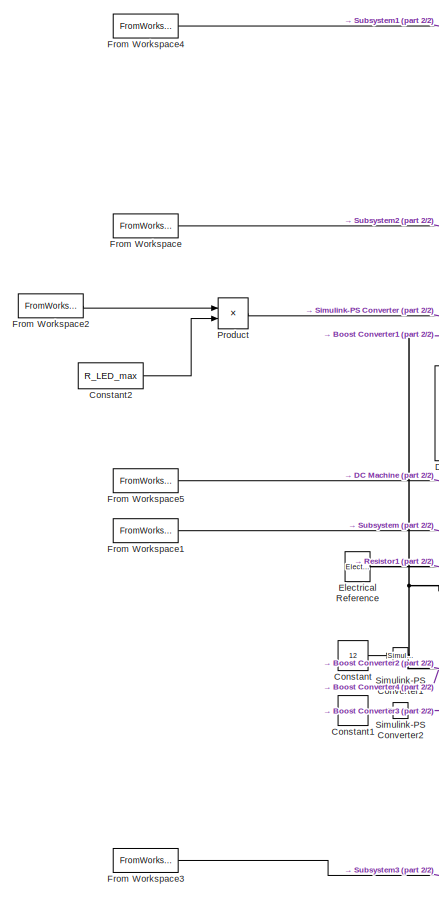
[diagram: root canvas - part 1/2, left side, full height]
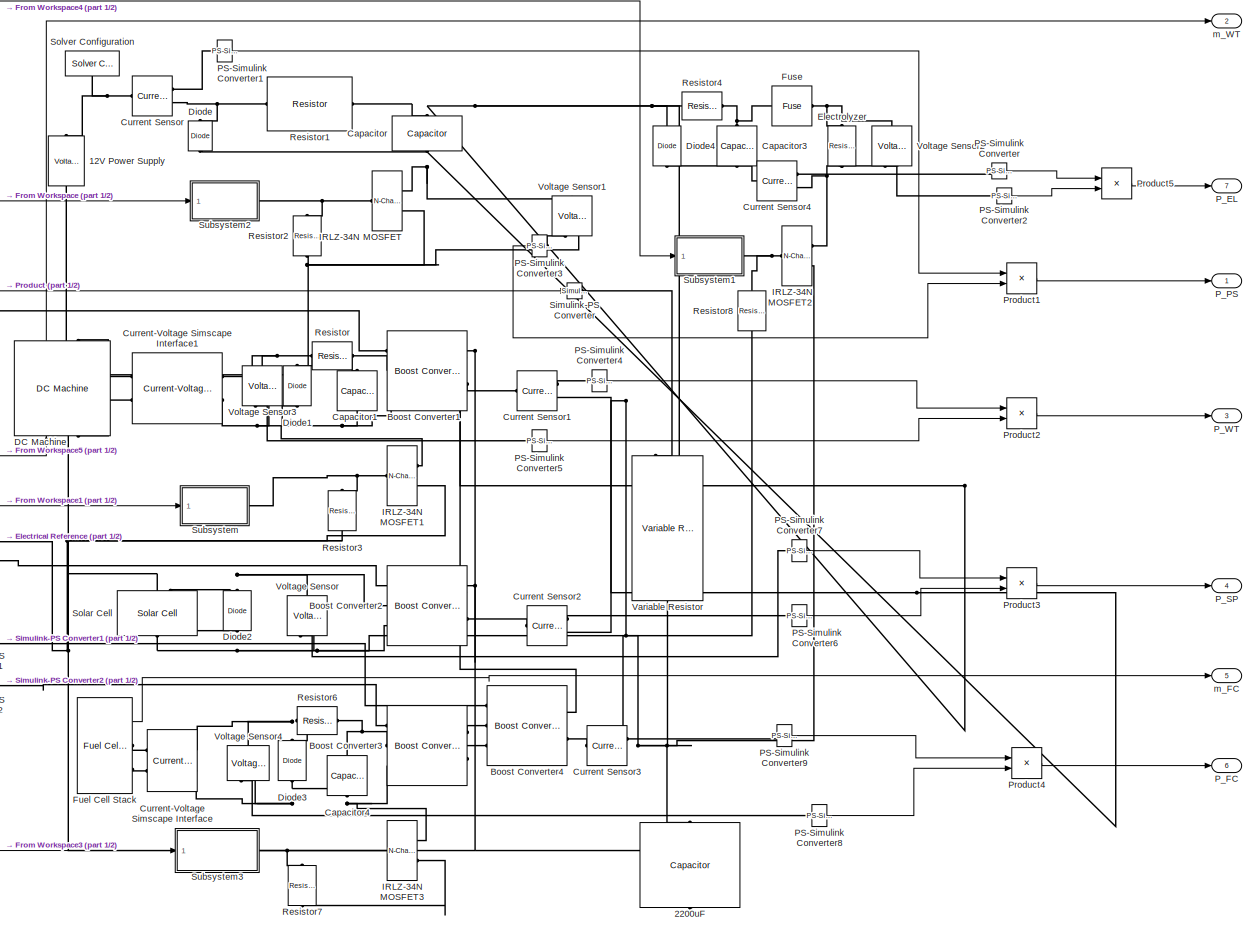
[diagram: root canvas - part 2/2, most of the canvas]
MODEL slx_ab03ebcbf2f6
KIND model
CONFIG AbsTol = auto
CONFIG EnableMultiTasking = off
CONFIG FixedStep = auto
CONFIG MaxStep = auto
CONFIG MinStep = auto
CONFIG RelTol = 1e-3
CONFIG SampleTimeConstraint = Unconstrained
CONFIG Solver = VariableStepAuto
CONFIG SolverName = VariableStepAuto
CONFIG StartTime = 0.0
CONFIG StopTime = 10.0
BLOCK [Reference] 12V Power Supply  REF=ee_lib/Sources/Voltage Source
  Ports = [0, 0, 0, 0, 0, 1, 1]
  SourceBlock = ee_lib/Sources/Voltage Source
  SourceProductBaseCode = PS
  SourceProductName = Simscape Electrical
  SourceType = Voltage Source
BLOCK [Reference] 2200uF  REF=fl_lib/Electrical/Electrical Elements/Capacitor
  Ports = [0, 0, 0, 0, 0, 1, 1]
  SourceBlock = fl_lib/Electrical/Electrical Elements/Capacitor
  SourceProductBaseCode = SS
  SourceProductName = Simscape
  SourceType = Capacitor
BLOCK [Reference] Boost Converter1  REF=ee_lib/Semiconductors &
Converters/Converters/Boost Converter
  Ports = [0, 0, 0, 0, 0, 3, 2]
  SourceBlock = ee_lib/Semiconductors &\nConverters/Converters/Boost Converter
  SourceProductBaseCode = PS
  SourceProductName = Simscape Electrical
  SourceType = Boost Converter
BLOCK [Reference] Boost Converter2  REF=ee_lib/Semiconductors &
Converters/Converters/Boost Converter
  Ports = [0, 0, 0, 0, 0, 3, 2]
  SourceBlock = ee_lib/Semiconductors &\nConverters/Converters/Boost Converter
  SourceProductBaseCode = PS
  SourceProductName = Simscape Electrical
  SourceType = Boost Converter
BLOCK [Reference] Boost Converter3  REF=ee_lib/Semiconductors &
Converters/Converters/Boost Converter
  Ports = [0, 0, 0, 0, 0, 3, 2]
  SourceBlock = ee_lib/Semiconductors &\nConverters/Converters/Boost Converter
  SourceProductBaseCode = PS
  SourceProductName = Simscape Electrical
  SourceType = Boost Converter
BLOCK [Reference] Boost Converter4  REF=ee_lib/Semiconductors &
Converters/Converters/Boost Converter
  Ports = [0, 0, 0, 0, 0, 3, 2]
  SourceBlock = ee_lib/Semiconductors &\nConverters/Converters/Boost Converter
  SourceProductBaseCode = PS
  SourceProductName = Simscape Electrical
  SourceType = Boost Converter
BLOCK [Reference] Capacitor  REF=fl_lib/Electrical/Electrical Elements/Capacitor
  Ports = [0, 0, 0, 0, 0, 1, 1]
  SourceBlock = fl_lib/Electrical/Electrical Elements/Capacitor
  SourceProductBaseCode = SS
  SourceProductName = Simscape
  SourceType = Capacitor
BLOCK [Reference] Capacitor1  REF=fl_lib/Electrical/Electrical Elements/Capacitor
  Ports = [0, 0, 0, 0, 0, 1, 1]
  SourceBlock = fl_lib/Electrical/Electrical Elements/Capacitor
  SourceProductBaseCode = SS
  SourceProductName = Simscape
  SourceType = Capacitor
BLOCK [Reference] Capacitor3  REF=fl_lib/Electrical/Electrical Elements/Capacitor
  Ports = [0, 0, 0, 0, 0, 1, 1]
  SourceBlock = fl_lib/Electrical/Electrical Elements/Capacitor
  SourceProductBaseCode = SS
  SourceProductName = Simscape
  SourceType = Capacitor
BLOCK [Reference] Capacitor4  REF=fl_lib/Electrical/Electrical Elements/Capacitor
  Ports = [0, 0, 0, 0, 0, 1, 1]
  SourceBlock = fl_lib/Electrical/Electrical Elements/Capacitor
  SourceProductBaseCode = SS
  SourceProductName = Simscape
  SourceType = Capacitor
BLOCK [Constant] Constant
  Value = 12
BLOCK [Constant] Constant1
  Value = 5
BLOCK [Constant] Constant2
  Value = R_LED_max
BLOCK [Reference] Current Sensor  REF=fl_lib/Electrical/Electrical Sensors/Current Sensor
  Ports = [0, 0, 0, 0, 0, 1, 2]
  SourceBlock = fl_lib/Electrical/Electrical Sensors/Current Sensor
  SourceProductBaseCode = SS
  SourceProductName = Simscape
  SourceType = Current Sensor
BLOCK [Reference] Current Sensor1  REF=fl_lib/Electrical/Electrical Sensors/Current Sensor
  Ports = [0, 0, 0, 0, 0, 1, 2]
  SourceBlock = fl_lib/Electrical/Electrical Sensors/Current Sensor
  SourceProductBaseCode = SS
  SourceProductName = Simscape
  SourceType = Current Sensor
BLOCK [Reference] Current Sensor2  REF=fl_lib/Electrical/Electrical Sensors/Current Sensor
  Ports = [0, 0, 0, 0, 0, 1, 2]
  SourceBlock = fl_lib/Electrical/Electrical Sensors/Current Sensor
  SourceProductBaseCode = SS
  SourceProductName = Simscape
  SourceType = Current Sensor
BLOCK [Reference] Current Sensor3  REF=fl_lib/Electrical/Electrical Sensors/Current Sensor
  Ports = [0, 0, 0, 0, 0, 1, 2]
  SourceBlock = fl_lib/Electrical/Electrical Sensors/Current Sensor
  SourceProductBaseCode = SS
  SourceProductName = Simscape
  SourceType = Current Sensor
BLOCK [Reference] Current Sensor4  REF=fl_lib/Electrical/Electrical Sensors/Current Sensor
  Ports = [0, 0, 0, 0, 0, 1, 2]
  SourceBlock = fl_lib/Electrical/Electrical Sensors/Current Sensor
  SourceProductBaseCode = SS
  SourceProductName = Simscape
  SourceType = Current Sensor
BLOCK [Reference] Current-Voltage Simscape Interface  REF=powerlib/Interface
Elements/Current-Voltage
Simscape Interface
  Ports = [0, 0, 0, 0, 0, 2, 2]
  SourceBlock = powerlib/Interface\nElements/Current-Voltage\nSimscape Interface
  SourceProductBaseCode = PS
  SourceProductName = Simscape Electrical
  SourceType = Specialized Power Systems - Simscape Interface Element
BLOCK [Reference] Current-Voltage Simscape Interface1  REF=powerlib/Interface
Elements/Current-Voltage
Simscape Interface
  Ports = [0, 0, 0, 0, 0, 2, 2]
  SourceBlock = powerlib/Interface\nElements/Current-Voltage\nSimscape Interface
  SourceProductBaseCode = PS
  SourceProductName = Simscape Electrical
  SourceType = Specialized Power Systems - Simscape Interface Element
BLOCK [Reference] DC Machine  REF=powerlib/Machines/DC Machine
  Ports = [1, 1, 0, 0, 0, 1, 1]
  SourceBlock = powerlib/Machines/DC Machine
  SourceProductBaseCode = PS
  SourceProductName = Simscape Electrical
  SourceType = DC machine
BLOCK [Reference] Diode  REF=ee_lib/Semiconductors &
Converters/Diode
  Ports = [0, 0, 0, 0, 0, 1, 1]
  SourceBlock = ee_lib/Semiconductors &\nConverters/Diode
  SourceProductBaseCode = PS
  SourceProductName = Simscape Electrical
  SourceType = Diode
BLOCK [Reference] Diode1  REF=ee_lib/Semiconductors &
Converters/Diode
  Ports = [0, 0, 0, 0, 0, 1, 1]
  SourceBlock = ee_lib/Semiconductors &\nConverters/Diode
  SourceProductBaseCode = PS
  SourceProductName = Simscape Electrical
  SourceType = Diode
BLOCK [Reference] Diode2  REF=ee_lib/Semiconductors &
Converters/Diode
  Ports = [0, 0, 0, 0, 0, 1, 1]
  SourceBlock = ee_lib/Semiconductors &\nConverters/Diode
  SourceProductBaseCode = PS
  SourceProductName = Simscape Electrical
  SourceType = Diode
BLOCK [Reference] Diode3  REF=ee_lib/Semiconductors &
Converters/Diode
  Ports = [0, 0, 0, 0, 0, 1, 1]
  SourceBlock = ee_lib/Semiconductors &\nConverters/Diode
  SourceProductBaseCode = PS
  SourceProductName = Simscape Electrical
  SourceType = Diode
BLOCK [Reference] Diode4  REF=ee_lib/Semiconductors &
Converters/Diode
  Ports = [0, 0, 0, 0, 0, 1, 1]
  SourceBlock = ee_lib/Semiconductors &\nConverters/Diode
  SourceProductBaseCode = PS
  SourceProductName = Simscape Electrical
  SourceType = Diode
BLOCK [Reference] Electrical Reference  REF=fl_lib/Electrical/Electrical Elements/Electrical Reference
  Ports = [0, 0, 0, 0, 0, 1]
  SourceBlock = fl_lib/Electrical/Electrical Elements/Electrical Reference
  SourceProductBaseCode = SS
  SourceProductName = Simscape
  SourceType = Electrical Reference
BLOCK [Reference] Electrolyzer  REF=fl_lib/Electrical/Electrical Elements/Resistor
  Ports = [0, 0, 0, 0, 0, 1, 1]
  SourceBlock = fl_lib/Electrical/Electrical Elements/Resistor
  SourceProductBaseCode = SS
  SourceProductName = Simscape
  SourceType = Resistor
BLOCK [FromWorkspace] From Workspace
  SampleTime = 0
  VariableName = PS_PWM
  ZeroCross = on
BLOCK [FromWorkspace] From Workspace1
  SampleTime = 0
  VariableName = WT_PWM
  ZeroCross = on
BLOCK [FromWorkspace] From Workspace2
  SampleTime = 0
  VariableName = LED_PWM
  ZeroCross = on
BLOCK [FromWorkspace] From Workspace3
  SampleTime = 0
  VariableName = FC_PWM
  ZeroCross = on
BLOCK [FromWorkspace] From Workspace4
  SampleTime = 0
  VariableName = EL_PWM
  ZeroCross = on
BLOCK [FromWorkspace] From Workspace5
  SampleTime = 0
  VariableName = omega_m
  ZeroCross = on
BLOCK [Reference] Fuel Cell Stack  REF=electricdrivelib/Extra Sources/Fuel Cell Stack
  Ports = [0, 1, 0, 0, 0, 0, 2]
  SourceBlock = electricdrivelib/Extra Sources/Fuel Cell Stack
  SourceProductBaseCode = PS
  SourceProductName = Simscape Electrical
  SourceType = Fuel Cell Stack
BLOCK [Reference] Fuse  REF=ee_lib/Switches & Breakers/Fuse
  Ports = [0, 0, 0, 0, 0, 1, 1]
  SourceBlock = ee_lib/Switches & Breakers/Fuse
  SourceProductBaseCode = PS
  SourceProductName = Simscape Electrical
  SourceType = Fuse
BLOCK [Reference] IRLZ-34N MOSFET  REF=ee_lib/Semiconductors &
Converters/N-Channel MOSFET
  Ports = [0, 0, 0, 0, 0, 1, 2]
  SourceBlock = ee_lib/Semiconductors &\nConverters/N-Channel MOSFET
  SourceProductBaseCode = PS
  SourceProductName = Simscape Electrical
  SourceType = N-Channel MOSFET
BLOCK [Reference] IRLZ-34N MOSFET1  REF=ee_lib/Semiconductors &
Converters/N-Channel MOSFET
  Ports = [0, 0, 0, 0, 0, 1, 2]
  SourceBlock = ee_lib/Semiconductors &\nConverters/N-Channel MOSFET
  SourceProductBaseCode = PS
  SourceProductName = Simscape Electrical
  SourceType = N-Channel MOSFET
BLOCK [Reference] IRLZ-34N MOSFET2  REF=ee_lib/Semiconductors &
Converters/N-Channel MOSFET
  Ports = [0, 0, 0, 0, 0, 1, 2]
  SourceBlock = ee_lib/Semiconductors &\nConverters/N-Channel MOSFET
  SourceProductBaseCode = PS
  SourceProductName = Simscape Electrical
  SourceType = N-Channel MOSFET
BLOCK [Reference] IRLZ-34N MOSFET3  REF=ee_lib/Semiconductors &
Converters/N-Channel MOSFET
  Ports = [0, 0, 0, 0, 0, 1, 2]
  SourceBlock = ee_lib/Semiconductors &\nConverters/N-Channel MOSFET
  SourceProductBaseCode = PS
  SourceProductName = Simscape Electrical
  SourceType = N-Channel MOSFET
BLOCK [Reference] PS-Simulink Converter  REF=nesl_utility/PS-Simulink
Converter
  Ports = [0, 1, 0, 0, 0, 1]
  SourceBlock = nesl_utility/PS-Simulink\nConverter
  SourceProductBaseCode = SS
  SourceProductName = Simscape
  SourceType = PS-Simulink\nConverter
BLOCK [Reference] PS-Simulink Converter1  REF=nesl_utility/PS-Simulink
Converter
  Ports = [0, 1, 0, 0, 0, 1]
  SourceBlock = nesl_utility/PS-Simulink\nConverter
  SourceProductBaseCode = SS
  SourceProductName = Simscape
  SourceType = PS-Simulink\nConverter
BLOCK [Reference] PS-Simulink Converter2  REF=nesl_utility/PS-Simulink
Converter
  Ports = [0, 1, 0, 0, 0, 1]
  SourceBlock = nesl_utility/PS-Simulink\nConverter
  SourceProductBaseCode = SS
  SourceProductName = Simscape
  SourceType = PS-Simulink\nConverter
BLOCK [Reference] PS-Simulink Converter3  REF=nesl_utility/PS-Simulink
Converter
  Ports = [0, 1, 0, 0, 0, 1]
  SourceBlock = nesl_utility/PS-Simulink\nConverter
  SourceProductBaseCode = SS
  SourceProductName = Simscape
  SourceType = PS-Simulink\nConverter
BLOCK [Reference] PS-Simulink Converter4  REF=nesl_utility/PS-Simulink
Converter
  Ports = [0, 1, 0, 0, 0, 1]
  SourceBlock = nesl_utility/PS-Simulink\nConverter
  SourceProductBaseCode = SS
  SourceProductName = Simscape
  SourceType = PS-Simulink\nConverter
BLOCK [Reference] PS-Simulink Converter5  REF=nesl_utility/PS-Simulink
Converter
  Ports = [0, 1, 0, 0, 0, 1]
  SourceBlock = nesl_utility/PS-Simulink\nConverter
  SourceProductBaseCode = SS
  SourceProductName = Simscape
  SourceType = PS-Simulink\nConverter
BLOCK [Reference] PS-Simulink Converter6  REF=nesl_utility/PS-Simulink
Converter
  Ports = [0, 1, 0, 0, 0, 1]
  SourceBlock = nesl_utility/PS-Simulink\nConverter
  SourceProductBaseCode = SS
  SourceProductName = Simscape
  SourceType = PS-Simulink\nConverter
BLOCK [Reference] PS-Simulink Converter7  REF=nesl_utility/PS-Simulink
Converter
  Ports = [0, 1, 0, 0, 0, 1]
  SourceBlock = nesl_utility/PS-Simulink\nConverter
  SourceProductBaseCode = SS
  SourceProductName = Simscape
  SourceType = PS-Simulink\nConverter
BLOCK [Reference] PS-Simulink Converter8  REF=nesl_utility/PS-Simulink
Converter
  Ports = [0, 1, 0, 0, 0, 1]
  SourceBlock = nesl_utility/PS-Simulink\nConverter
  SourceProductBaseCode = SS
  SourceProductName = Simscape
  SourceType = PS-Simulink\nConverter
BLOCK [Reference] PS-Simulink Converter9  REF=nesl_utility/PS-Simulink
Converter
  Ports = [0, 1, 0, 0, 0, 1]
  SourceBlock = nesl_utility/PS-Simulink\nConverter
  SourceProductBaseCode = SS
  SourceProductName = Simscape
  SourceType = PS-Simulink\nConverter
BLOCK [Outport] P_EL
  IconDisplay = Port number
  Port = 7
BLOCK [Outport] P_FC
  IconDisplay = Port number
  Port = 6
BLOCK [Outport] P_PS
  IconDisplay = Port number
BLOCK [Outport] P_SP
  IconDisplay = Port number
  Port = 4
BLOCK [Outport] P_WT
  IconDisplay = Port number
  Port = 3
BLOCK [Product] Product
  InputSameDT = off
  OutDataTypeStr = Inherit: Inherit via internal rule
  Ports = [2, 1]
  RndMeth = Floor
  SaturateOnIntegerOverflow = off
BLOCK [Product] Product1
  InputSameDT = off
  OutDataTypeStr = Inherit: Inherit via internal rule
  Ports = [2, 1]
  RndMeth = Floor
  SaturateOnIntegerOverflow = off
BLOCK [Product] Product2
  InputSameDT = off
  OutDataTypeStr = Inherit: Inherit via internal rule
  Ports = [2, 1]
  RndMeth = Floor
  SaturateOnIntegerOverflow = off
BLOCK [Product] Product3
  InputSameDT = off
  OutDataTypeStr = Inherit: Inherit via internal rule
  Ports = [2, 1]
  RndMeth = Floor
  SaturateOnIntegerOverflow = off
BLOCK [Product] Product4
  InputSameDT = off
  OutDataTypeStr = Inherit: Inherit via internal rule
  Ports = [2, 1]
  RndMeth = Floor
  SaturateOnIntegerOverflow = off
BLOCK [Product] Product5
  InputSameDT = off
  OutDataTypeStr = Inherit: Inherit via internal rule
  Ports = [2, 1]
  RndMeth = Floor
  SaturateOnIntegerOverflow = off
BLOCK [Reference] Resistor  REF=fl_lib/Electrical/Electrical Elements/Resistor
  Ports = [0, 0, 0, 0, 0, 1, 1]
  SourceBlock = fl_lib/Electrical/Electrical Elements/Resistor
  SourceProductBaseCode = SS
  SourceProductName = Simscape
  SourceType = Resistor
BLOCK [Reference] Resistor1  REF=fl_lib/Electrical/Electrical Elements/Resistor
  Ports = [0, 0, 0, 0, 0, 1, 1]
  SourceBlock = fl_lib/Electrical/Electrical Elements/Resistor
  SourceProductBaseCode = SS
  SourceProductName = Simscape
  SourceType = Resistor
BLOCK [Reference] Resistor2  REF=fl_lib/Electrical/Electrical Elements/Resistor
  Ports = [0, 0, 0, 0, 0, 1, 1]
  SourceBlock = fl_lib/Electrical/Electrical Elements/Resistor
  SourceProductBaseCode = SS
  SourceProductName = Simscape
  SourceType = Resistor
BLOCK [Reference] Resistor3  REF=fl_lib/Electrical/Electrical Elements/Resistor
  Ports = [0, 0, 0, 0, 0, 1, 1]
  SourceBlock = fl_lib/Electrical/Electrical Elements/Resistor
  SourceProductBaseCode = SS
  SourceProductName = Simscape
  SourceType = Resistor
BLOCK [Reference] Resistor4  REF=fl_lib/Electrical/Electrical Elements/Resistor
  Ports = [0, 0, 0, 0, 0, 1, 1]
  SourceBlock = fl_lib/Electrical/Electrical Elements/Resistor
  SourceProductBaseCode = SS
  SourceProductName = Simscape
  SourceType = Resistor
BLOCK [Reference] Resistor6  REF=fl_lib/Electrical/Electrical Elements/Resistor
  Ports = [0, 0, 0, 0, 0, 1, 1]
  SourceBlock = fl_lib/Electrical/Electrical Elements/Resistor
  SourceProductBaseCode = SS
  SourceProductName = Simscape
  SourceType = Resistor
BLOCK [Reference] Resistor7  REF=fl_lib/Electrical/Electrical Elements/Resistor
  Ports = [0, 0, 0, 0, 0, 1, 1]
  SourceBlock = fl_lib/Electrical/Electrical Elements/Resistor
  SourceProductBaseCode = SS
  SourceProductName = Simscape
  SourceType = Resistor
BLOCK [Reference] Resistor8  REF=fl_lib/Electrical/Electrical Elements/Resistor
  Ports = [0, 0, 0, 0, 0, 1, 1]
  SourceBlock = fl_lib/Electrical/Electrical Elements/Resistor
  SourceProductBaseCode = SS
  SourceProductName = Simscape
  SourceType = Resistor
BLOCK [Reference] Simulink-PS Converter  REF=nesl_utility/Simulink-PS
Converter
  Ports = [1, 0, 0, 0, 0, 0, 1]
  SourceBlock = nesl_utility/Simulink-PS\nConverter
  SourceProductBaseCode = SS
  SourceProductName = Simscape
  SourceType = Simulink-PS\nConverter
BLOCK [Reference] Simulink-PS Converter1  REF=nesl_utility/Simulink-PS
Converter
  Ports = [1, 0, 0, 0, 0, 0, 1]
  SourceBlock = nesl_utility/Simulink-PS\nConverter
  SourceProductBaseCode = SS
  SourceProductName = Simscape
  SourceType = Simulink-PS\nConverter
BLOCK [Reference] Simulink-PS Converter2  REF=nesl_utility/Simulink-PS
Converter
  Ports = [1, 0, 0, 0, 0, 0, 1]
  SourceBlock = nesl_utility/Simulink-PS\nConverter
  SourceProductBaseCode = SS
  SourceProductName = Simscape
  SourceType = Simulink-PS\nConverter
BLOCK [Reference] Solar Cell  REF=ee_lib/Sources/Solar Cell
  Ports = [0, 0, 0, 0, 0, 2, 1]
  SourceBlock = ee_lib/Sources/Solar Cell
  SourceProductBaseCode = PS
  SourceProductName = Simscape Electrical
  SourceType = Solar Cell
BLOCK [Reference] Solver Configuration  REF=nesl_utility/Solver
Configuration
  Ports = [0, 0, 0, 0, 0, 0, 1]
  SourceBlock = nesl_utility/Solver\nConfiguration
  SourceProductBaseCode = SS
  SourceProductName = Simscape
  SourceType = Solver\nConfiguration
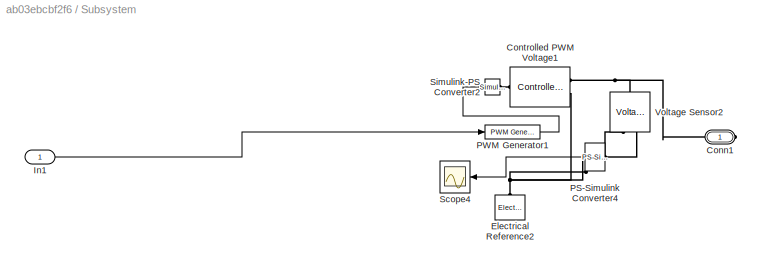
BLOCK [SubSystem] Subsystem
  Ports = [1, 0, 0, 0, 0, 0, 1]
  RequestExecContextInheritance = off
BLOCK [PMIOPort] Subsystem/Conn1
  Side = Right
BLOCK [Reference] Subsystem/Controlled PWM Voltage1  REF=ee_lib/Integrated Circuits/Controlled PWM
Voltage
  Ports = [0, 0, 0, 0, 0, 1, 2]
  SourceBlock = ee_lib/Integrated Circuits/Controlled PWM\nVoltage
  SourceProductBaseCode = PS
  SourceProductName = Simscape Electrical
  SourceType = Controlled PWM\nVoltage
BLOCK [Reference] Subsystem/Electrical Reference2  REF=fl_lib/Electrical/Electrical Elements/Electrical Reference
  Ports = [0, 0, 0, 0, 0, 1]
  SourceBlock = fl_lib/Electrical/Electrical Elements/Electrical Reference
  SourceProductBaseCode = SS
  SourceProductName = Simscape
  SourceType = Electrical Reference
BLOCK [Inport] Subsystem/In1
  IconDisplay = Port number
BLOCK [Reference] Subsystem/PS-Simulink Converter4  REF=nesl_utility/PS-Simulink
Converter
  Ports = [0, 1, 0, 0, 0, 1]
  SourceBlock = nesl_utility/PS-Simulink\nConverter
  SourceProductBaseCode = SS
  SourceProductName = Simscape
  SourceType = PS-Simulink\nConverter
BLOCK [Reference] Subsystem/PWM Generator1  REF=eePwmGenerator/PWM Generator
  Ports = [1, 1]
  SourceBlock = eePwmGenerator/PWM Generator
  SourceProductBaseCode = PS
  SourceProductName = Simscape Electrical
  SourceType = PWM Generator
BLOCK [Scope] Subsystem/Scope4
  Floating = off
  NumInputPorts = 1
  Ports = [1]
  ScopeSpecificationString = Simulink.scopes.TimeScopeBlockCfg('CurrentConfiguration', extmgr.ConfigurationSet(extmgr.Configuration('Core','General UI',true),extmgr.Configuration('Core','Source UI',true),extmgr.Configuration('Sources','WiredSimulink',true,'DataLoggingVariableName','ScopeData1'),extmgr.Configuration('Visuals','Time Domain',true,'SerializedDisplays',{struct('MinYLimReal','4.77465','MaxYLimReal','4.77476','YLabe...<+1428ch>  <repeated x3 — deduplicated; at blocks: Scope4>
BLOCK [Reference] Subsystem/Simulink-PS Converter2  REF=nesl_utility/Simulink-PS
Converter
  Ports = [1, 0, 0, 0, 0, 0, 1]
  SourceBlock = nesl_utility/Simulink-PS\nConverter
  SourceProductBaseCode = SS
  SourceProductName = Simscape
  SourceType = Simulink-PS\nConverter
BLOCK [Reference] Subsystem/Voltage Sensor2  REF=fl_lib/Electrical/Electrical Sensors/Voltage Sensor
  Ports = [0, 0, 0, 0, 0, 1, 2]
  SourceBlock = fl_lib/Electrical/Electrical Sensors/Voltage Sensor
  SourceProductBaseCode = SS
  SourceProductName = Simscape
  SourceType = Voltage Sensor
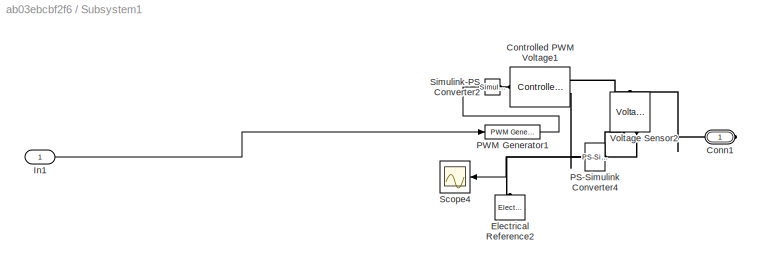
BLOCK [SubSystem] Subsystem1
  Ports = [1, 0, 0, 0, 0, 0, 1]
  RequestExecContextInheritance = off
BLOCK [PMIOPort] Subsystem1/Conn1
  Side = Right
BLOCK [Reference] Subsystem1/Controlled PWM Voltage1  REF=ee_lib/Integrated Circuits/Controlled PWM
Voltage
  Ports = [0, 0, 0, 0, 0, 1, 2]
  SourceBlock = ee_lib/Integrated Circuits/Controlled PWM\nVoltage
  SourceProductBaseCode = PS
  SourceProductName = Simscape Electrical
  SourceType = Controlled PWM\nVoltage
BLOCK [Reference] Subsystem1/Electrical Reference2  REF=fl_lib/Electrical/Electrical Elements/Electrical Reference
  Ports = [0, 0, 0, 0, 0, 1]
  SourceBlock = fl_lib/Electrical/Electrical Elements/Electrical Reference
  SourceProductBaseCode = SS
  SourceProductName = Simscape
  SourceType = Electrical Reference
BLOCK [Inport] Subsystem1/In1
  IconDisplay = Port number
BLOCK [Reference] Subsystem1/PS-Simulink Converter4  REF=nesl_utility/PS-Simulink
Converter
  Ports = [0, 1, 0, 0, 0, 1]
  SourceBlock = nesl_utility/PS-Simulink\nConverter
  SourceProductBaseCode = SS
  SourceProductName = Simscape
  SourceType = PS-Simulink\nConverter
BLOCK [Reference] Subsystem1/PWM Generator1  REF=eePwmGenerator/PWM Generator
  Ports = [1, 1]
  SourceBlock = eePwmGenerator/PWM Generator
  SourceProductBaseCode = PS
  SourceProductName = Simscape Electrical
  SourceType = PWM Generator
BLOCK [Scope] Subsystem1/Scope4
  Floating = off
  NumInputPorts = 1
  Ports = [1]
BLOCK [Reference] Subsystem1/Simulink-PS Converter2  REF=nesl_utility/Simulink-PS
Converter
  Ports = [1, 0, 0, 0, 0, 0, 1]
  SourceBlock = nesl_utility/Simulink-PS\nConverter
  SourceProductBaseCode = SS
  SourceProductName = Simscape
  SourceType = Simulink-PS\nConverter
BLOCK [Reference] Subsystem1/Voltage Sensor2  REF=fl_lib/Electrical/Electrical Sensors/Voltage Sensor
  Ports = [0, 0, 0, 0, 0, 1, 2]
  SourceBlock = fl_lib/Electrical/Electrical Sensors/Voltage Sensor
  SourceProductBaseCode = SS
  SourceProductName = Simscape
  SourceType = Voltage Sensor
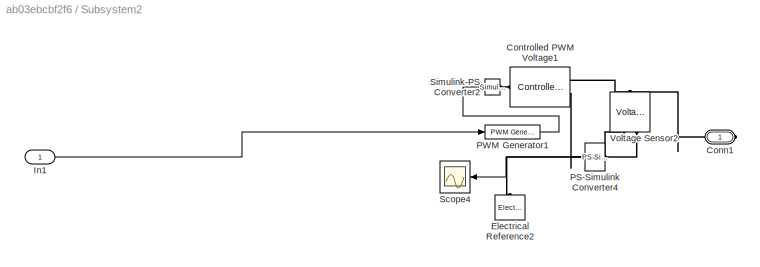
BLOCK [SubSystem] Subsystem2
  Ports = [1, 0, 0, 0, 0, 0, 1]
  RequestExecContextInheritance = off
BLOCK [PMIOPort] Subsystem2/Conn1
  Side = Right
BLOCK [Reference] Subsystem2/Controlled PWM Voltage1  REF=ee_lib/Integrated Circuits/Controlled PWM
Voltage
  Ports = [0, 0, 0, 0, 0, 1, 2]
  SourceBlock = ee_lib/Integrated Circuits/Controlled PWM\nVoltage
  SourceProductBaseCode = PS
  SourceProductName = Simscape Electrical
  SourceType = Controlled PWM\nVoltage
BLOCK [Reference] Subsystem2/Electrical Reference2  REF=fl_lib/Electrical/Electrical Elements/Electrical Reference
  Ports = [0, 0, 0, 0, 0, 1]
  SourceBlock = fl_lib/Electrical/Electrical Elements/Electrical Reference
  SourceProductBaseCode = SS
  SourceProductName = Simscape
  SourceType = Electrical Reference
BLOCK [Inport] Subsystem2/In1
  IconDisplay = Port number
BLOCK [Reference] Subsystem2/PS-Simulink Converter4  REF=nesl_utility/PS-Simulink
Converter
  Ports = [0, 1, 0, 0, 0, 1]
  SourceBlock = nesl_utility/PS-Simulink\nConverter
  SourceProductBaseCode = SS
  SourceProductName = Simscape
  SourceType = PS-Simulink\nConverter
BLOCK [Reference] Subsystem2/PWM Generator1  REF=eePwmGenerator/PWM Generator
  Ports = [1, 1]
  SourceBlock = eePwmGenerator/PWM Generator
  SourceProductBaseCode = PS
  SourceProductName = Simscape Electrical
  SourceType = PWM Generator
BLOCK [Scope] Subsystem2/Scope4
  Floating = off
  NumInputPorts = 1
  Ports = [1]
BLOCK [Reference] Subsystem2/Simulink-PS Converter2  REF=nesl_utility/Simulink-PS
Converter
  Ports = [1, 0, 0, 0, 0, 0, 1]
  SourceBlock = nesl_utility/Simulink-PS\nConverter
  SourceProductBaseCode = SS
  SourceProductName = Simscape
  SourceType = Simulink-PS\nConverter
BLOCK [Reference] Subsystem2/Voltage Sensor2  REF=fl_lib/Electrical/Electrical Sensors/Voltage Sensor
  Ports = [0, 0, 0, 0, 0, 1, 2]
  SourceBlock = fl_lib/Electrical/Electrical Sensors/Voltage Sensor
  SourceProductBaseCode = SS
  SourceProductName = Simscape
  SourceType = Voltage Sensor
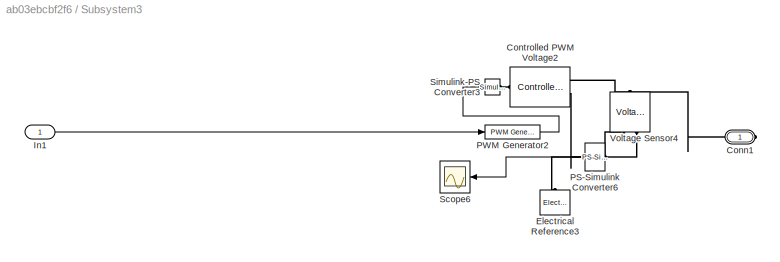
BLOCK [SubSystem] Subsystem3
  Ports = [1, 0, 0, 0, 0, 0, 1]
  RequestExecContextInheritance = off
BLOCK [PMIOPort] Subsystem3/Conn1
  Side = Right
BLOCK [Reference] Subsystem3/Controlled PWM Voltage2  REF=ee_lib/Integrated Circuits/Controlled PWM
Voltage
  Ports = [0, 0, 0, 0, 0, 1, 2]
  SourceBlock = ee_lib/Integrated Circuits/Controlled PWM\nVoltage
  SourceProductBaseCode = PS
  SourceProductName = Simscape Electrical
  SourceType = Controlled PWM\nVoltage
BLOCK [Reference] Subsystem3/Electrical Reference3  REF=fl_lib/Electrical/Electrical Elements/Electrical Reference
  Ports = [0, 0, 0, 0, 0, 1]
  SourceBlock = fl_lib/Electrical/Electrical Elements/Electrical Reference
  SourceProductBaseCode = SS
  SourceProductName = Simscape
  SourceType = Electrical Reference
BLOCK [Inport] Subsystem3/In1
  IconDisplay = Port number
BLOCK [Reference] Subsystem3/PS-Simulink Converter6  REF=nesl_utility/PS-Simulink
Converter
  Ports = [0, 1, 0, 0, 0, 1]
  SourceBlock = nesl_utility/PS-Simulink\nConverter
  SourceProductBaseCode = SS
  SourceProductName = Simscape
  SourceType = PS-Simulink\nConverter
BLOCK [Reference] Subsystem3/PWM Generator2  REF=eePwmGenerator/PWM Generator
  Ports = [1, 1]
  SourceBlock = eePwmGenerator/PWM Generator
  SourceProductBaseCode = PS
  SourceProductName = Simscape Electrical
  SourceType = PWM Generator
BLOCK [Scope] Subsystem3/Scope6
  Floating = off
  NumInputPorts = 1
  Ports = [1]
  ScopeSpecificationString = Simulink.scopes.TimeScopeBlockCfg('CurrentConfiguration', extmgr.ConfigurationSet(extmgr.Configuration('Core','General UI',true),extmgr.Configuration('Core','Source UI',true),extmgr.Configuration('Sources','WiredSimulink',true,'DataLoggingVariableName','ScopeData3'),extmgr.Configuration('Visuals','Time Domain',true,'SerializedDisplays',{struct('MinYLimReal','4.77465','MaxYLimReal','4.77476','YLabe...<+1428ch>
BLOCK [Reference] Subsystem3/Simulink-PS Converter3  REF=nesl_utility/Simulink-PS
Converter
  Ports = [1, 0, 0, 0, 0, 0, 1]
  SourceBlock = nesl_utility/Simulink-PS\nConverter
  SourceProductBaseCode = SS
  SourceProductName = Simscape
  SourceType = Simulink-PS\nConverter
BLOCK [Reference] Subsystem3/Voltage Sensor4  REF=fl_lib/Electrical/Electrical Sensors/Voltage Sensor
  Ports = [0, 0, 0, 0, 0, 1, 2]
  SourceBlock = fl_lib/Electrical/Electrical Sensors/Voltage Sensor
  SourceProductBaseCode = SS
  SourceProductName = Simscape
  SourceType = Voltage Sensor
BLOCK [Reference] Variable Resistor  REF=fl_lib/Electrical/Electrical Elements/Variable Resistor
  Ports = [0, 0, 0, 0, 0, 2, 1]
  SourceBlock = fl_lib/Electrical/Electrical Elements/Variable Resistor
  SourceProductBaseCode = SS
  SourceProductName = Simscape
  SourceType = Variable Resistor
BLOCK [Reference] Voltage Sensor  REF=fl_lib/Electrical/Electrical Sensors/Voltage Sensor
  Ports = [0, 0, 0, 0, 0, 1, 2]
  SourceBlock = fl_lib/Electrical/Electrical Sensors/Voltage Sensor
  SourceProductBaseCode = SS
  SourceProductName = Simscape
  SourceType = Voltage Sensor
BLOCK [Reference] Voltage Sensor1  REF=fl_lib/Electrical/Electrical Sensors/Voltage Sensor
  Ports = [0, 0, 0, 0, 0, 1, 2]
  SourceBlock = fl_lib/Electrical/Electrical Sensors/Voltage Sensor
  SourceProductBaseCode = SS
  SourceProductName = Simscape
  SourceType = Voltage Sensor
BLOCK [Reference] Voltage Sensor2  REF=fl_lib/Electrical/Electrical Sensors/Voltage Sensor
  Ports = [0, 0, 0, 0, 0, 1, 2]
  SourceBlock = fl_lib/Electrical/Electrical Sensors/Voltage Sensor
  SourceProductBaseCode = SS
  SourceProductName = Simscape
  SourceType = Voltage Sensor
BLOCK [Reference] Voltage Sensor3  REF=fl_lib/Electrical/Electrical Sensors/Voltage Sensor
  Ports = [0, 0, 0, 0, 0, 1, 2]
  SourceBlock = fl_lib/Electrical/Electrical Sensors/Voltage Sensor
  SourceProductBaseCode = SS
  SourceProductName = Simscape
  SourceType = Voltage Sensor
BLOCK [Reference] Voltage Sensor4  REF=fl_lib/Electrical/Electrical Sensors/Voltage Sensor
  Ports = [0, 0, 0, 0, 0, 1, 2]
  SourceBlock = fl_lib/Electrical/Electrical Sensors/Voltage Sensor
  SourceProductBaseCode = SS
  SourceProductName = Simscape
  SourceType = Voltage Sensor
BLOCK [Outport] m_FC
  IconDisplay = Port number
  Port = 5
BLOCK [Outport] m_WT
  IconDisplay = Port number
  Port = 2
LINE Constant1:1 -> Simulink-PS Converter2:1
LINE Constant2:1 -> Product:2
LINE Constant:1 -> Simulink-PS Converter1:1
LINE DC Machine:1 -> m_WT:1
LINE From Workspace1:1 -> Subsystem:1
LINE From Workspace2:1 -> Product:1
LINE From Workspace3:1 -> Subsystem3:1
LINE From Workspace4:1 -> Subsystem1:1
LINE From Workspace5:1 -> DC Machine:1
LINE From Workspace:1 -> Subsystem2:1
LINE Fuel Cell Stack:1 -> m_FC:1
LINE PS-Simulink Converter1:1 -> Product1:1
LINE PS-Simulink Converter2:1 -> Product5:2
LINE PS-Simulink Converter3:1 -> Product1:2
LINE PS-Simulink Converter4:1 -> Product2:1
LINE PS-Simulink Converter5:1 -> Product2:2
LINE PS-Simulink Converter6:1 -> Product3:2
LINE PS-Simulink Converter7:1 -> Product3:1
LINE PS-Simulink Converter8:1 -> Product4:2
LINE PS-Simulink Converter9:1 -> Product4:1
LINE PS-Simulink Converter:1 -> Product5:1
LINE Product1:1 -> P_PS:1
LINE Product2:1 -> P_WT:1
LINE Product3:1 -> P_SP:1
LINE Product4:1 -> P_FC:1
LINE Product5:1 -> P_EL:1
LINE Product:1 -> Simulink-PS Converter:1
LINE Subsystem/In1:1 -> Subsystem/PWM Generator1:1
LINE Subsystem/PS-Simulink Converter4:1 -> Subsystem/Scope4:1
LINE Subsystem/PWM Generator1:1 -> Subsystem/Simulink-PS Converter2:1
LINE Subsystem1/In1:1 -> Subsystem1/PWM Generator1:1
LINE Subsystem1/PS-Simulink Converter4:1 -> Subsystem1/Scope4:1
LINE Subsystem1/PWM Generator1:1 -> Subsystem1/Simulink-PS Converter2:1
LINE Subsystem2/In1:1 -> Subsystem2/PWM Generator1:1
LINE Subsystem2/PS-Simulink Converter4:1 -> Subsystem2/Scope4:1
LINE Subsystem2/PWM Generator1:1 -> Subsystem2/Simulink-PS Converter2:1
LINE Subsystem3/In1:1 -> Subsystem3/PWM Generator2:1
LINE Subsystem3/PS-Simulink Converter6:1 -> Subsystem3/Scope6:1
LINE Subsystem3/PWM Generator2:1 -> Subsystem3/Simulink-PS Converter3:1
PNET net1: 12V Power Supply:LConn1 -- Current Sensor:LConn1 -- Solver Configuration:RConn1
PNET net2: 12V Power Supply:RConn1 -- 2200uF:RConn1 -- Boost Converter1:RConn1 -- Boost Converter2:LConn3 -- Boost Converter2:RConn1 -- Boost Converter4:RConn1 -- Capacitor:LConn1 -- Diode2:LConn1 -- Diode4:RConn1 -- Electrical Reference:LConn1 -- IRLZ-34N MOSFET1:RConn2 -- IRLZ-34N MOSFET:RConn2 -- Resistor1:RConn1 -- Resistor2:RConn1 -- Resistor3:RConn1 -- Resistor4:LConn1 -- Resistor8:RConn1 -- Solar Cell:RConn1 -- Variable Resistor:LConn2 -- Voltage Sensor1:RConn2 -- Voltage Sensor:RConn2
PNET net3: 2200uF:LConn1 -- Capacitor:RConn1 -- Current Sensor1:RConn2 -- Current Sensor2:RConn2 -- Current Sensor3:RConn2 -- Diode:LConn1 -- IRLZ-34N MOSFET2:RConn2 -- IRLZ-34N MOSFET:RConn1 -- Variable Resistor:RConn1 -- Voltage Sensor1:LConn1
PNET net4: Boost Converter1:LConn1 -- Boost Converter2:LConn1 -- Boost Converter4:LConn1 -- Simulink-PS Converter1:RConn1
PNET net5: Boost Converter1:LConn2 -- Capacitor1:LConn1 -- Resistor:RConn1
PNET net6: Boost Converter1:LConn3 -- Capacitor1:RConn1 -- Current-Voltage Simscape Interface1:RConn2 -- Diode1:LConn1 -- IRLZ-34N MOSFET1:RConn1 -- Voltage Sensor3:RConn2
PLINE Boost Converter1:RConn2 -- Current Sensor1:LConn1
PNET net7: Boost Converter2:LConn2 -- Diode2:RConn1 -- Solar Cell:LConn2 -- Voltage Sensor:LConn1
PLINE Boost Converter2:RConn2 -- Current Sensor2:LConn1
PLINE Boost Converter3:LConn1 -- Simulink-PS Converter2:RConn1
PNET net8: Boost Converter3:LConn2 -- Capacitor4:LConn1 -- Resistor6:RConn1
PNET net9: Boost Converter3:LConn3 -- Capacitor4:RConn1 -- Current-Voltage Simscape Interface:RConn2 -- Diode3:LConn1 -- IRLZ-34N MOSFET3:RConn1 -- Voltage Sensor4:RConn2
PLINE Boost Converter3:RConn1 -- Boost Converter4:LConn2
PLINE Boost Converter3:RConn2 -- Boost Converter4:LConn3
PLINE Boost Converter4:RConn2 -- Current Sensor3:LConn1
PNET net10: Capacitor3:LConn1 -- Fuse:LConn1 -- Resistor4:RConn1
PNET net11: Capacitor3:RConn1 -- Current Sensor4:LConn1 -- Diode4:LConn1
PLINE Current Sensor1:RConn1 -- PS-Simulink Converter4:LConn1
PLINE Current Sensor2:RConn1 -- PS-Simulink Converter6:LConn1
PLINE Current Sensor3:RConn1 -- PS-Simulink Converter9:LConn1
PLINE Current Sensor4:RConn1 -- PS-Simulink Converter:LConn1
PNET net12: Current Sensor4:RConn2 -- Electrolyzer:RConn1 -- IRLZ-34N MOSFET2:RConn1 -- Voltage Sensor2:RConn2
PLINE Current Sensor:RConn1 -- PS-Simulink Converter1:LConn1
PNET net13: Current Sensor:RConn2 -- Diode:RConn1 -- Resistor1:LConn1
PLINE Current-Voltage Simscape Interface1:LConn1 -- DC Machine:RConn1
PLINE Current-Voltage Simscape Interface1:LConn2 -- DC Machine:LConn1
PNET net14: Current-Voltage Simscape Interface1:RConn1 -- Diode1:RConn1 -- Resistor:LConn1 -- Voltage Sensor3:LConn1
PLINE Current-Voltage Simscape Interface:LConn1 -- Fuel Cell Stack:RConn1
PLINE Current-Voltage Simscape Interface:LConn2 -- Fuel Cell Stack:RConn2
PNET net15: Current-Voltage Simscape Interface:RConn1 -- Diode3:RConn1 -- Resistor6:LConn1 -- Voltage Sensor4:LConn1
PNET net16: Electrolyzer:LConn1 -- Fuse:RConn1 -- Voltage Sensor2:LConn1
PNET net17: IRLZ-34N MOSFET1:LConn1 -- Resistor3:LConn1 -- Subsystem:RConn1
PNET net18: IRLZ-34N MOSFET2:LConn1 -- Resistor8:LConn1 -- Subsystem1:RConn1
PNET net19: IRLZ-34N MOSFET3:LConn1 -- Resistor7:LConn1 -- Subsystem3:RConn1
PLINE IRLZ-34N MOSFET3:RConn2 -- Resistor7:RConn1
PNET net20: IRLZ-34N MOSFET:LConn1 -- Resistor2:LConn1 -- Subsystem2:RConn1
PLINE PS-Simulink Converter2:LConn1 -- Voltage Sensor2:RConn1
PLINE PS-Simulink Converter3:LConn1 -- Voltage Sensor1:RConn1
PLINE PS-Simulink Converter5:LConn1 -- Voltage Sensor3:RConn1
PLINE PS-Simulink Converter7:LConn1 -- Voltage Sensor:RConn1
PLINE PS-Simulink Converter8:LConn1 -- Voltage Sensor4:RConn1
PLINE Simulink-PS Converter:RConn1 -- Variable Resistor:LConn1
PNET net21: Subsystem/Conn1:RConn1 -- Subsystem/Controlled PWM Voltage1:RConn1 -- Subsystem/Voltage Sensor2:LConn1
PLINE Subsystem/Controlled PWM Voltage1:LConn1 -- Subsystem/Simulink-PS Converter2:RConn1
PNET net22: Subsystem/Controlled PWM Voltage1:RConn2 -- Subsystem/Electrical Reference2:LConn1 -- Subsystem/Voltage Sensor2:RConn2
PLINE Subsystem/PS-Simulink Converter4:LConn1 -- Subsystem/Voltage Sensor2:RConn1
PNET net23: Subsystem1/Conn1:RConn1 -- Subsystem1/Controlled PWM Voltage1:RConn1 -- Subsystem1/Voltage Sensor2:LConn1
PLINE Subsystem1/Controlled PWM Voltage1:LConn1 -- Subsystem1/Simulink-PS Converter2:RConn1
PNET net24: Subsystem1/Controlled PWM Voltage1:RConn2 -- Subsystem1/Electrical Reference2:LConn1 -- Subsystem1/Voltage Sensor2:RConn2
PLINE Subsystem1/PS-Simulink Converter4:LConn1 -- Subsystem1/Voltage Sensor2:RConn1
PNET net25: Subsystem2/Conn1:RConn1 -- Subsystem2/Controlled PWM Voltage1:RConn1 -- Subsystem2/Voltage Sensor2:LConn1
PLINE Subsystem2/Controlled PWM Voltage1:LConn1 -- Subsystem2/Simulink-PS Converter2:RConn1
PNET net26: Subsystem2/Controlled PWM Voltage1:RConn2 -- Subsystem2/Electrical Reference2:LConn1 -- Subsystem2/Voltage Sensor2:RConn2
PLINE Subsystem2/PS-Simulink Converter4:LConn1 -- Subsystem2/Voltage Sensor2:RConn1
PNET net27: Subsystem3/Conn1:RConn1 -- Subsystem3/Controlled PWM Voltage2:RConn1 -- Subsystem3/Voltage Sensor4:LConn1
PLINE Subsystem3/Controlled PWM Voltage2:LConn1 -- Subsystem3/Simulink-PS Converter3:RConn1
PNET net28: Subsystem3/Controlled PWM Voltage2:RConn2 -- Subsystem3/Electrical Reference3:LConn1 -- Subsystem3/Voltage Sensor4:RConn2
PLINE Subsystem3/PS-Simulink Converter6:LConn1 -- Subsystem3/Voltage Sensor4:RConn1
note: PNET lines group multi-terminal physical nets as a canonical sorted terminal list (undirected conserving connections); 2-terminal nets keep the pairwise PLINE form
